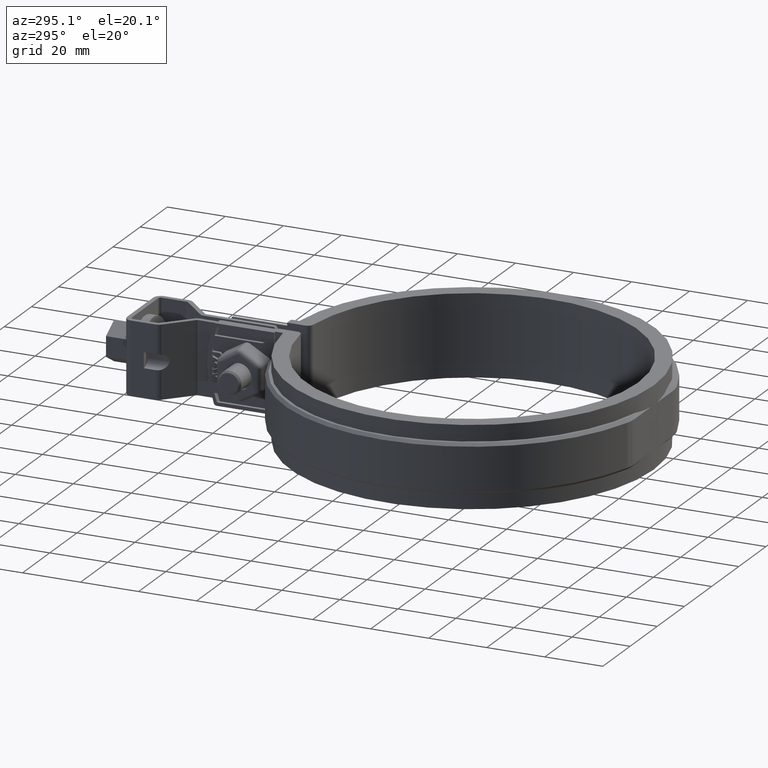
[diagram: clean part render]
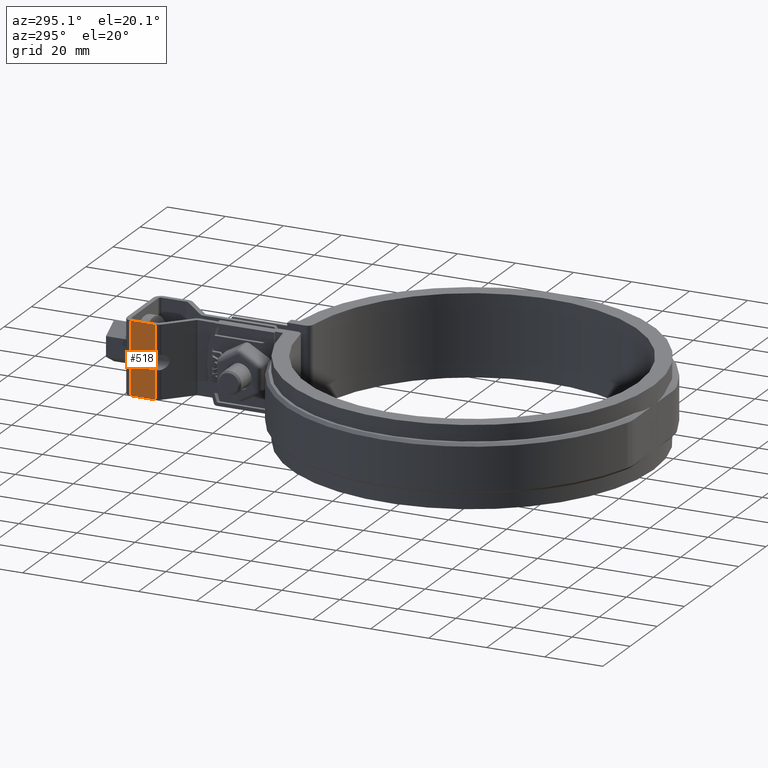
[diagram: same view with one face highlighted and labeled with its STEP entity id]
A machine part, auxiliary view. The second image highlights one B-rep face of the part: STEP entity #518.
In plain terms, the highlighted planar face has unit normal (-1, -0, -0).
Its self-contained STEP definition (entity closure, byte-faithful):
#518 = ADVANCED_FACE( '', ( #1019 ), #1020, .T. );
#1019 = FACE_OUTER_BOUND( '', #2276, .T. );
#1020 = PLANE( '', #2277 );
#2276 = EDGE_LOOP( '', ( #4620, #4621, #4622, #4623, #4624, #4625, #4626, #4627 ) );
#2277 = AXIS2_PLACEMENT_3D( '', #4628, #4629, #4630 );
#4620 = ORIENTED_EDGE( '', *, *, #6482, .F. );
#4621 = ORIENTED_EDGE( '', *, *, #6461, .T. );
#4622 = ORIENTED_EDGE( '', *, *, #6483, .T. );
#4623 = ORIENTED_EDGE( '', *, *, #6458, .F. );
#4624 = ORIENTED_EDGE( '', *, *, #6468, .F. );
#4625 = ORIENTED_EDGE( '', *, *, #6374, .T. );
#4626 = ORIENTED_EDGE( '', *, *, #6484, .T. );
#4627 = ORIENTED_EDGE( '', *, *, #6394, .F. );
#4628 = CARTESIAN_POINT( '', ( -12.2500000000195, 103.497631763374, 12.4999999990614 ) );
#4629 = DIRECTION( '', ( -1.00000000000000, -2.55517071553623E-013, -1.69013704294045E-013 ) );
#4630 = DIRECTION( '', ( -2.55517071553623E-013, 1.00000000000000, 0.000000000000000 ) );
#6374 = EDGE_CURVE( '', #7516, #7514, #7517, .F. );
#6394 = EDGE_CURVE( '', #7552, #7554, #7555, .T. );
#6458 = EDGE_CURVE( '', #7660, #7662, #7663, .F. );
#6461 = EDGE_CURVE( '', #7667, #7665, #7668, .F. );
#6468 = EDGE_CURVE( '', #7516, #7660, #7677, .T. );
#6482 = EDGE_CURVE( '', #7667, #7552, #7691, .T. );
#6483 = EDGE_CURVE( '', #7665, #7662, #7692, .F. );
#6484 = EDGE_CURVE( '', #7514, #7554, #7693, .T. );
#7514 = VERTEX_POINT( '', #10924 );
#7516 = VERTEX_POINT( '', #10926 );
#7517 = LINE( '', #10927, #10928 );
#7552 = VERTEX_POINT( '', #10974 );
#7554 = VERTEX_POINT( '', #10976 );
#7555 = LINE( '', #10977, #10978 );
#7660 = VERTEX_POINT( '', #11152 );
#7662 = VERTEX_POINT( '', #11161 );
#7663 = LINE( '', #11162, #11163 );
#7665 = VERTEX_POINT( '', #11165 );
#7667 = VERTEX_POINT( '', #11167 );
#7668 = LINE( '', #11168, #11169 );
#7677 = LINE( '', #11190, #11191 );
#7691 = LINE( '', #11217, #11218 );
#7692 = LINE( '', #11219, #11220 );
#7693 = LINE( '', #11221, #11222 );
#10924 = CARTESIAN_POINT( '', ( -12.2500000000216, 111.801825964260, 12.4999999990015 ) );
#10926 = CARTESIAN_POINT( '', ( -12.2500000000195, 103.497631763374, 12.4999999990614 ) );
#10927 = CARTESIAN_POINT( '', ( -12.2500000000195, 103.497631763374, 12.4999999990614 ) );
#10928 = VECTOR( '', #12781, 1000.00000000000 );
#10974 = CARTESIAN_POINT( '', ( -12.2500000000153, 103.497631763194, -12.5000000009386 ) );
#10976 = CARTESIAN_POINT( '', ( -12.2500000000174, 111.801825964080, -12.5000000009985 ) );
#10977 = CARTESIAN_POINT( '', ( -12.2500000000174, 111.801825964079, -12.5000000009985 ) );
#10978 = VECTOR( '', #12817, 1000.00000000000 );
#11152 = CARTESIAN_POINT( '', ( -12.2500000000178, 103.497631763303, 2.64999999906134 ) );
#11161 = CARTESIAN_POINT( '', ( -12.2500000000188, 107.401825964189, 2.64999999903317 ) );
#11162 = CARTESIAN_POINT( '', ( -12.2500000000163, 97.4018259641888, 2.64999999910534 ) );
#11163 = VECTOR( '', #12920, 1000.00000000000 );
#11165 = CARTESIAN_POINT( '', ( -12.2500000000179, 107.401825964151, -2.65000000096677 ) );
#11167 = CARTESIAN_POINT( '', ( -12.2500000000169, 103.497631763265, -2.65000000093860 ) );
#11168 = CARTESIAN_POINT( '', ( -12.2500000000154, 97.4018259641506, -2.65000000089460 ) );
#11169 = VECTOR( '', #12927, 1000.00000000000 );
#11190 = CARTESIAN_POINT( '', ( -12.2500000000195, 103.497631763374, 12.4999999990614 ) );
#11191 = VECTOR( '', #12937, 1000.00000000000 );
#11217 = CARTESIAN_POINT( '', ( -12.2500000000195, 103.497631763374, 12.4999999990614 ) );
#11218 = VECTOR( '', #12953, 1000.00000000000 );
#11219 = CARTESIAN_POINT( '', ( -12.2500000000205, 107.401825964260, 12.4999999990332 ) );
#11220 = VECTOR( '', #12954, 1000.00000000000 );
#11221 = CARTESIAN_POINT( '', ( -12.2500000000216, 111.801825964260, 12.4999999990014 ) );
#11222 = VECTOR( '', #12955, 1000.00000000000 );
#12781 = DIRECTION( '', ( 2.55517071552403E-013, -1.00000000000000, 7.21711579387898E-012 ) );
#12817 = DIRECTION( '', ( -2.55517071552403E-013, 1.00000000000000, -7.21711579387898E-012 ) );
#12920 = DIRECTION( '', ( 2.55517071552404E-013, -1.00000000000000, 7.21711579387898E-012 ) );
#12927 = DIRECTION( '', ( 2.55517071552404E-013, -1.00000000000000, 7.21711579387898E-012 ) );
#12937 = DIRECTION( '', ( 1.69013704295889E-013, -7.21711579387894E-012, -1.00000000000000 ) );
#12953 = DIRECTION( '', ( 1.69013704295889E-013, -7.21711579387894E-012, -1.00000000000000 ) );
#12954 = DIRECTION( '', ( 1.69013704295889E-013, -7.21711579387891E-012, -1.00000000000000 ) );
#12955 = DIRECTION( '', ( 1.69013704295889E-013, -7.21711579387894E-012, -1.00000000000000 ) );